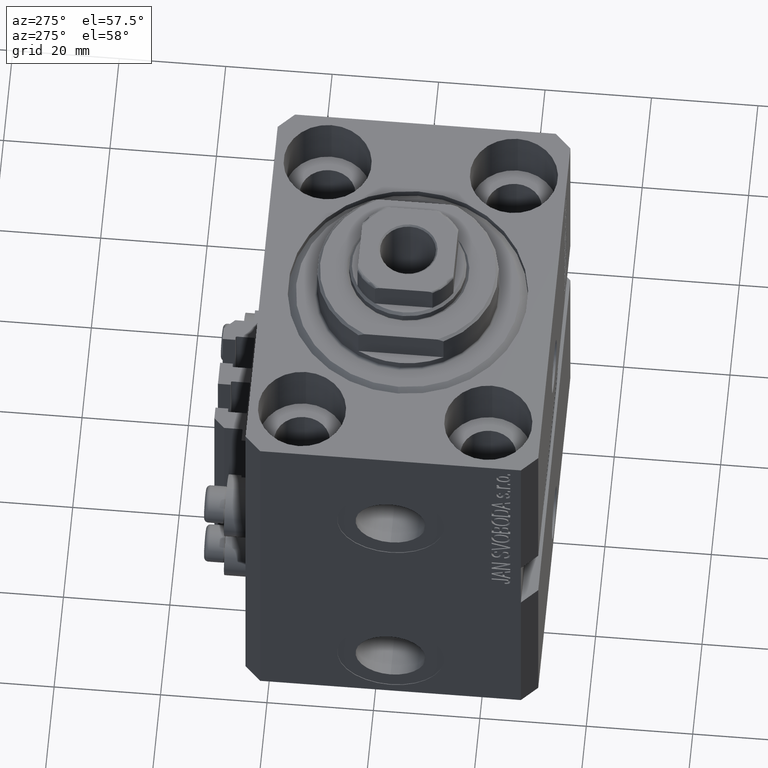
[diagram: clean part render]
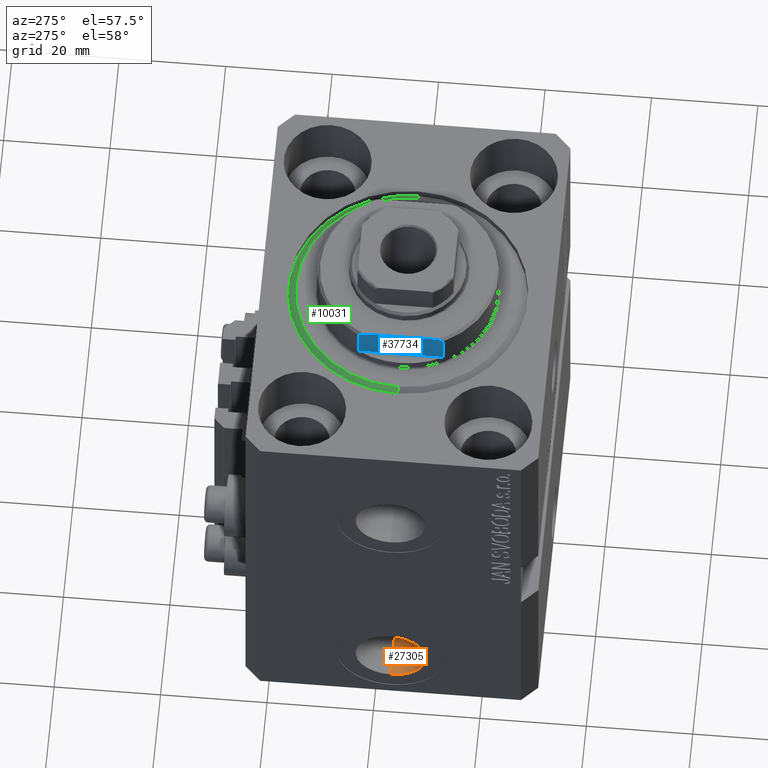
[diagram: same view with three faces highlighted in distinct colors, each labeled with its STEP entity id]
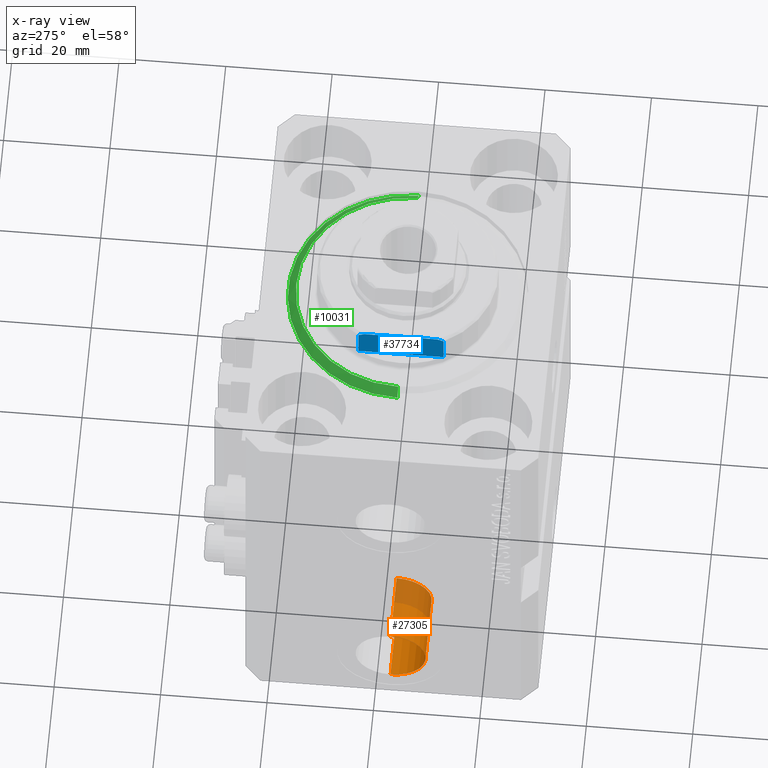
[diagram: x-ray of the same camera — body ghosted, the three highlighted faces saturated]
A machine part, auxiliary view with three faces highlighted in distinct colors.
The next image is the same camera in x-ray (body ghosted, the three faces saturated) — at least one of them is partly hidden behind the body in this view.
Their STEP definitions:

[orange] entity #27305 — the highlighted cylindrical surface (edge-blend (fillet) strip) has radius 6.58 mm, axis along (-1, -0, -0).
#702 = EDGE_CURVE ( 'NONE', #22250, #38791, #7360, .T. ) ;
#1711 = ORIENTED_EDGE ( 'NONE', *, *, #15421, .T. ) ;
#5749 = AXIS2_PLACEMENT_3D ( 'NONE', #9149, #16244, #22893 ) ;
#5924 = ORIENTED_EDGE ( 'NONE', *, *, #19165, .F. ) ;
#6404 = EDGE_CURVE ( 'NONE', #19637, #33219, #24104, .T. ) ;
#6472 = CARTESIAN_POINT ( 'NONE',  ( -24.39999999999999147, -8.327598234202001119E-15, -61.42000000000000171 ) ) ;
#7319 = ORIENTED_EDGE ( 'NONE', *, *, #702, .F. ) ;
#7360 = LINE ( 'NONE', #40477, #36394 ) ;
#9070 = EDGE_LOOP ( 'NONE', ( #5924, #39414, #1711, #7319 ) ) ;
#9149 = CARTESIAN_POINT ( 'NONE',  ( -24.39999999999999147, -8.327598234202001119E-15, -68.00000000000000000 ) ) ;
#10635 = DIRECTION ( 'NONE',  ( -1.000000000000000000, -0.000000000000000000, -0.000000000000000000 ) ) ;
#11759 = CIRCLE ( 'NONE', #14817, 6.580000000000002736 ) ;
#12485 = CARTESIAN_POINT ( 'NONE',  ( -24.39999999999999147, -7.521780640363043654E-15, -74.58000000000001251 ) ) ;
#13704 = DIRECTION ( 'NONE',  ( 0.000000000000000000, 0.000000000000000000, 1.000000000000000000 ) ) ;
#14817 = AXIS2_PLACEMENT_3D ( 'NONE', #24539, #39428, #45615 ) ;
#15421 = EDGE_CURVE ( 'NONE', #33219, #38791, #11759, .T. ) ;
#16244 = DIRECTION ( 'NONE',  ( -1.000000000000000000, 0.000000000000000000, 0.000000000000000000 ) ) ;
#17853 = CIRCLE ( 'NONE', #5749, 6.580000000000002736 ) ;
#18291 = VECTOR ( 'NONE', #30954, 1000.000000000000000 ) ;
#19165 = EDGE_CURVE ( 'NONE', #19637, #22250, #17853, .T. ) ;
#19637 = VERTEX_POINT ( 'NONE', #12485 ) ;
#19983 = AXIS2_PLACEMENT_3D ( 'NONE', #24854, #10635, #13704 ) ;
#22250 = VERTEX_POINT ( 'NONE', #6472 ) ;
#22504 = DIRECTION ( 'NONE',  ( -1.000000000000000000, -0.000000000000000000, -0.000000000000000000 ) ) ;
#22893 = DIRECTION ( 'NONE',  ( 0.000000000000000000, 0.000000000000000000, 1.000000000000000000 ) ) ;
#24104 = LINE ( 'NONE', #34959, #18291 ) ;
#24539 = CARTESIAN_POINT ( 'NONE',  ( -37.39999999999999147, -8.327598234202001119E-15, -68.00000000000000000 ) ) ;
#24854 = CARTESIAN_POINT ( 'NONE',  ( -24.39999999999999147, -8.327598234202001119E-15, -68.00000000000000000 ) ) ;
#27305 = ADVANCED_FACE ( 'NONE', ( #31463 ), #39502, .F. ) ;
#27839 = CARTESIAN_POINT ( 'NONE',  ( -37.39999999999999147, -7.521780640363043654E-15, -74.58000000000001251 ) ) ;
#30954 = DIRECTION ( 'NONE',  ( -1.000000000000000000, -0.000000000000000000, -0.000000000000000000 ) ) ;
#31463 = FACE_OUTER_BOUND ( 'NONE', #9070, .T. ) ;
#33219 = VERTEX_POINT ( 'NONE', #27839 ) ;
#34959 = CARTESIAN_POINT ( 'NONE',  ( -24.39999999999999147, -7.521780640363043654E-15, -74.58000000000001251 ) ) ;
#36394 = VECTOR ( 'NONE', #22504, 1000.000000000000000 ) ;
#38791 = VERTEX_POINT ( 'NONE', #40643 ) ;
#39414 = ORIENTED_EDGE ( 'NONE', *, *, #6404, .T. ) ;
#39428 = DIRECTION ( 'NONE',  ( -1.000000000000000000, 0.000000000000000000, 0.000000000000000000 ) ) ;
#39502 = CYLINDRICAL_SURFACE ( 'NONE', #19983, 6.580000000000002736 ) ;
#40477 = CARTESIAN_POINT ( 'NONE',  ( -24.39999999999999147, -8.327598234202001119E-15, -61.42000000000000171 ) ) ;
#40643 = CARTESIAN_POINT ( 'NONE',  ( -37.39999999999999147, -8.327598234202001119E-15, -61.42000000000000171 ) ) ;
#45615 = DIRECTION ( 'NONE',  ( 0.000000000000000000, 0.000000000000000000, 1.000000000000000000 ) ) ;

[blue] entity #37734 — the highlighted planar face has unit normal (-1, 0, 0).
#457 = CARTESIAN_POINT ( 'NONE',  ( 15.00000000000000000, -7.254193676168129379, -7.841555306644510281 ) ) ;
#1918 = EDGE_LOOP ( 'NONE', ( #36749, #11153, #5915, #5023, #10675, #29283 ) ) ;
#2205 = AXIS2_PLACEMENT_3D ( 'NONE', #26396, #32543, #44146 ) ;
#2739 = FACE_OUTER_BOUND ( 'NONE', #1918, .T. ) ;
#3539 = CARTESIAN_POINT ( 'NONE',  ( 15.00000000000000000, -7.629305121525812083, -7.674444648693743432 ) ) ;
#4156 = DIRECTION ( 'NONE',  ( 0.000000000000000000, -1.000000000000000000, -0.000000000000000000 ) ) ;
#4187 = VERTEX_POINT ( 'NONE', #4947 ) ;
#4947 = CARTESIAN_POINT ( 'NONE',  ( 15.00000000000000000, -8.000000000000001776, -7.500000000000007105 ) ) ;
#5023 = ORIENTED_EDGE ( 'NONE', *, *, #6237, .F. ) ;
#5915 = ORIENTED_EDGE ( 'NONE', *, *, #27303, .T. ) ;
#6237 = EDGE_CURVE ( 'NONE', #31610, #4187, #12047, .T. ) ;
#6366 = DIRECTION ( 'NONE',  ( 0.000000000000000000, 0.000000000000000000, -1.000000000000000000 ) ) ;
#8171 = VECTOR ( 'NONE', #28169, 1000.000000000000000 ) ;
#8172 = CARTESIAN_POINT ( 'NONE',  ( 15.00000000000000000, -42.42640687119285303, -8.000000000000000000 ) ) ;
#10160 = VECTOR ( 'NONE', #4156, 1000.000000000000000 ) ;
#10675 = ORIENTED_EDGE ( 'NONE', *, *, #27992, .F. ) ;
#11153 = ORIENTED_EDGE ( 'NONE', *, *, #36057, .T. ) ;
#11286 = LINE ( 'NONE', #44187, #45024 ) ;
#12047 = B_SPLINE_CURVE_WITH_KNOTS ( 'NONE', 3,
 ( #35948, #457, #3539, #40445 ),
 .UNSPECIFIED., .F., .F.,
 ( 4, 4 ),
 ( 0.04875332532859059237, 0.04998905627745663105 ),
 .UNSPECIFIED. ) ;
#12245 = VERTEX_POINT ( 'NONE', #35755 ) ;
#17569 = B_SPLINE_CURVE_WITH_KNOTS ( 'NONE', 3,
 ( #40107, #26620, #34631, #45076 ),
 .UNSPECIFIED., .F., .F.,
 ( 4, 4 ),
 ( 0.03336039268697043453, 0.03459498301323849639 ),
 .UNSPECIFIED. ) ;
#21635 = CARTESIAN_POINT ( 'NONE',  ( 14.99999999999999645, -6.873863542433765517, -8.000000000000000000 ) ) ;
#26396 = CARTESIAN_POINT ( 'NONE',  ( 15.00000000000000000, -42.42640687119285303, -2.000000000000000000 ) ) ;
#26620 = CARTESIAN_POINT ( 'NONE',  ( 15.00000000000000000, 7.628315461082481264, -7.674910371255307062 ) ) ;
#26737 = EDGE_CURVE ( 'NONE', #31541, #31718, #11286, .T. ) ;
#27303 = EDGE_CURVE ( 'NONE', #35446, #4187, #46147, .T. ) ;
#27560 = CARTESIAN_POINT ( 'NONE',  ( 15.00000000000000000, 8.000000000000001776, -7.500000000000007105 ) ) ;
#27992 = EDGE_CURVE ( 'NONE', #12245, #31610, #40369, .T. ) ;
#28169 = DIRECTION ( 'NONE',  ( 0.000000000000000000, -1.000000000000000000, -0.000000000000000000 ) ) ;
#29283 = ORIENTED_EDGE ( 'NONE', *, *, #36846, .F. ) ;
#31541 = VERTEX_POINT ( 'NONE', #27560 ) ;
#31610 = VERTEX_POINT ( 'NONE', #21635 ) ;
#31718 = VERTEX_POINT ( 'NONE', #33432 ) ;
#32408 = CARTESIAN_POINT ( 'NONE',  ( 15.00000000000000000, -42.42640687119285303, -2.000000000000000000 ) ) ;
#32543 = DIRECTION ( 'NONE',  ( 1.000000000000000000, 0.000000000000000000, -0.000000000000000000 ) ) ;
#33432 = CARTESIAN_POINT ( 'NONE',  ( 14.99999999999999645, 8.000000000000003553, -2.000000000000000000 ) ) ;
#34631 = CARTESIAN_POINT ( 'NONE',  ( 15.00000000000000000, 7.253126193285932111, -7.842000017654665811 ) ) ;
#34768 = CARTESIAN_POINT ( 'NONE',  ( 14.99999999999999645, -8.000000000000003553, -2.000000000000000000 ) ) ;
#35446 = VERTEX_POINT ( 'NONE', #34768 ) ;
#35755 = CARTESIAN_POINT ( 'NONE',  ( 14.99999999999999645, 6.873863542433765517, -8.000000000000000000 ) ) ;
#35844 = VECTOR ( 'NONE', #6366, 1000.000000000000000 ) ;
#35948 = CARTESIAN_POINT ( 'NONE',  ( 14.99999999999999645, -6.873863542433765517, -8.000000000000000000 ) ) ;
#36057 = EDGE_CURVE ( 'NONE', #31718, #35446, #39038, .T. ) ;
#36363 = DIRECTION ( 'NONE',  ( -0.000000000000000000, -0.000000000000000000, 1.000000000000000000 ) ) ;
#36749 = ORIENTED_EDGE ( 'NONE', *, *, #26737, .T. ) ;
#36846 = EDGE_CURVE ( 'NONE', #31541, #12245, #17569, .T. ) ;
#37255 = PLANE ( 'NONE',  #2205 ) ;
#37734 = ADVANCED_FACE ( 'NONE', ( #2739 ), #37255, .T. ) ;
#38787 = CARTESIAN_POINT ( 'NONE',  ( 15.00000000000000000, -8.000000000000001776, -8.000000000000000000 ) ) ;
#39038 = LINE ( 'NONE', #32408, #8171 ) ;
#40107 = CARTESIAN_POINT ( 'NONE',  ( 15.00000000000000000, 8.000000000000001776, -7.500000000000007105 ) ) ;
#40369 = LINE ( 'NONE', #8172, #10160 ) ;
#40445 = CARTESIAN_POINT ( 'NONE',  ( 15.00000000000000000, -8.000000000000001776, -7.500000000000007105 ) ) ;
#44146 = DIRECTION ( 'NONE',  ( -0.000000000000000000, 0.000000000000000000, -1.000000000000000000 ) ) ;
#44187 = CARTESIAN_POINT ( 'NONE',  ( 15.00000000000000000, 8.000000000000001776, -8.000000000000000000 ) ) ;
#45024 = VECTOR ( 'NONE', #36363, 1000.000000000000000 ) ;
#45076 = CARTESIAN_POINT ( 'NONE',  ( 14.99999999999999645, 6.873863542433765517, -8.000000000000000000 ) ) ;
#46147 = LINE ( 'NONE', #38787, #35844 ) ;

[green] entity #10031 — the highlighted conical surface has half-angle 45 deg.
#575 = CARTESIAN_POINT ( 'NONE',  ( -22.50000000000000355, 2.755455298081545172E-15, 1.500000000000001332 ) ) ;
#3078 = VERTEX_POINT ( 'NONE', #4880 ) ;
#3279 = DIRECTION ( 'NONE',  ( 1.000000000000000000, 0.000000000000000000, 0.000000000000000000 ) ) ;
#3687 = DIRECTION ( 'NONE',  ( 0.7071067811865500152, 0.000000000000000000, 0.7071067811865451302 ) ) ;
#3749 = DIRECTION ( 'NONE',  ( -0.000000000000000000, -0.000000000000000000, -1.000000000000000000 ) ) ;
#4804 = CONICAL_SURFACE ( 'NONE', #13863, 22.50000000000000355, 0.7853981633974517207 ) ;
#4880 = CARTESIAN_POINT ( 'NONE',  ( -22.50000000000000355, 0.000000000000000000, 1.500000000000001332 ) ) ;
#5655 = EDGE_CURVE ( 'NONE', #15627, #3078, #40560, .T. ) ;
#5800 = CIRCLE ( 'NONE', #30854, 22.50000000000000355 ) ;
#6717 = CARTESIAN_POINT ( 'NONE',  ( -20.99999999999998934, 2.663606788145492628E-15, 0.000000000000000000 ) ) ;
#9938 = EDGE_LOOP ( 'NONE', ( #27786, #28139, #30494, #14402 ) ) ;
#10031 = ADVANCED_FACE ( 'NONE', ( #17683 ), #4804, .T. ) ;
#12435 = CARTESIAN_POINT ( 'NONE',  ( 0.000000000000000000, 0.000000000000000000, 1.500000000000001332 ) ) ;
#12653 = EDGE_CURVE ( 'NONE', #15627, #41790, #35851, .T. ) ;
#13483 = VERTEX_POINT ( 'NONE', #18860 ) ;
#13863 = AXIS2_PLACEMENT_3D ( 'NONE', #13894, #35660, #16978 ) ;
#13894 = CARTESIAN_POINT ( 'NONE',  ( 0.000000000000000000, 0.000000000000000000, 1.500000000000001332 ) ) ;
#14402 = ORIENTED_EDGE ( 'NONE', *, *, #14486, .F. ) ;
#14486 = EDGE_CURVE ( 'NONE', #41790, #13483, #43215, .T. ) ;
#15451 = AXIS2_PLACEMENT_3D ( 'NONE', #29291, #3749, #3279 ) ;
#15627 = VERTEX_POINT ( 'NONE', #6717 ) ;
#16978 = DIRECTION ( 'NONE',  ( 1.000000000000000000, 0.000000000000000000, 0.000000000000000000 ) ) ;
#17683 = FACE_OUTER_BOUND ( 'NONE', #9938, .T. ) ;
#18254 = VECTOR ( 'NONE', #40799, 1000.000000000000114 ) ;
#18860 = CARTESIAN_POINT ( 'NONE',  ( 22.50000000000000355, 2.755455298081545172E-15, 1.500000000000001332 ) ) ;
#22148 = CARTESIAN_POINT ( 'NONE',  ( 22.50000000000000355, 0.000000000000000000, 1.500000000000001332 ) ) ;
#23816 = DIRECTION ( 'NONE',  ( 1.000000000000000000, 0.000000000000000000, 0.000000000000000000 ) ) ;
#25861 = EDGE_CURVE ( 'NONE', #13483, #3078, #5800, .T. ) ;
#26102 = VECTOR ( 'NONE', #3687, 1000.000000000000114 ) ;
#27786 = ORIENTED_EDGE ( 'NONE', *, *, #12653, .F. ) ;
#28139 = ORIENTED_EDGE ( 'NONE', *, *, #5655, .T. ) ;
#29291 = CARTESIAN_POINT ( 'NONE',  ( 0.000000000000000000, 0.000000000000000000, 0.000000000000000000 ) ) ;
#30494 = ORIENTED_EDGE ( 'NONE', *, *, #25861, .F. ) ;
#30854 = AXIS2_PLACEMENT_3D ( 'NONE', #12435, #38227, #23816 ) ;
#31919 = CARTESIAN_POINT ( 'NONE',  ( 20.99999999999998934, 0.000000000000000000, 0.000000000000000000 ) ) ;
#35660 = DIRECTION ( 'NONE',  ( -0.000000000000000000, -0.000000000000000000, 1.000000000000000000 ) ) ;
#35851 = CIRCLE ( 'NONE', #15451, 20.99999999999998934 ) ;
#38227 = DIRECTION ( 'NONE',  ( -0.000000000000000000, -0.000000000000000000, 1.000000000000000000 ) ) ;
#40560 = LINE ( 'NONE', #575, #18254 ) ;
#40799 = DIRECTION ( 'NONE',  ( -0.7071067811865500152, 8.659560562354963673E-17, 0.7071067811865451302 ) ) ;
#41790 = VERTEX_POINT ( 'NONE', #31919 ) ;
#43215 = LINE ( 'NONE', #22148, #26102 ) ;